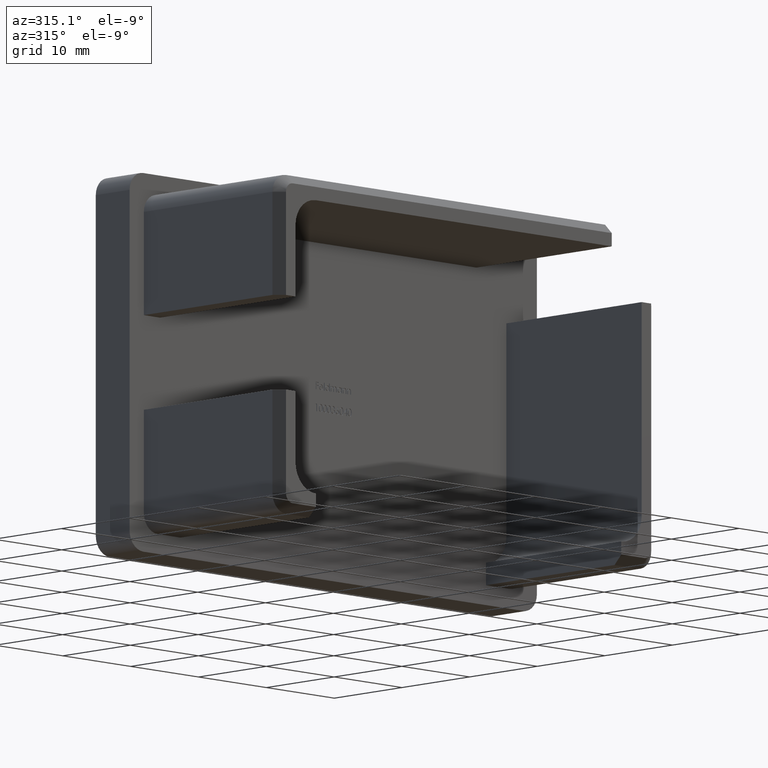
[diagram: clean part render]
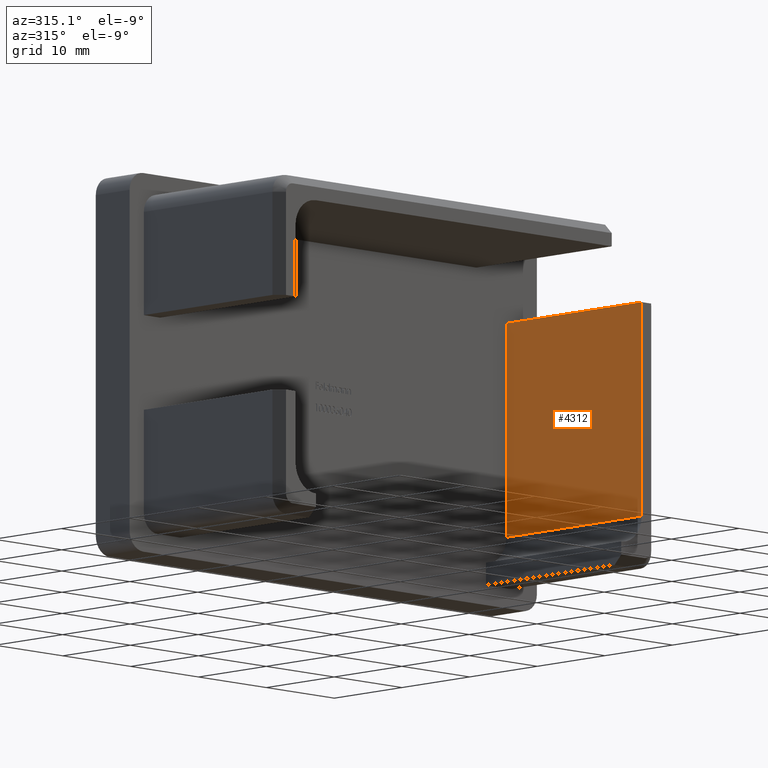
[diagram: same view with one face highlighted and labeled with its STEP entity id]
A machine part, auxiliary view. The second image highlights one B-rep face of the part: STEP entity #4312.
In plain terms, the highlighted planar face has unit normal (1, 0, 0).
Its self-contained STEP definition (entity closure, byte-faithful):
#779 = VERTEX_POINT ( 'NONE', #5652 ) ;
#1231 = CARTESIAN_POINT ( 'NONE',  ( 25.50000000000000400, -20.00000000000000000, 10.09999999999999400 ) ) ;
#1708 = DIRECTION ( 'NONE',  ( 0.0000000000000000000, 0.0000000000000000000, -1.000000000000000000 ) ) ;
#1752 = FACE_OUTER_BOUND ( 'NONE', #2384, .T. ) ;
#1792 = ORIENTED_EDGE ( 'NONE', *, *, #8230, .T. ) ;
#2174 = ORIENTED_EDGE ( 'NONE', *, *, #11158, .T. ) ;
#2300 = VECTOR ( 'NONE', #7105, 1000.000000000000000 ) ;
#2384 = EDGE_LOOP ( 'NONE', ( #1792, #6805, #4353, #2174 ) ) ;
#2405 = DIRECTION ( 'NONE',  ( -0.0000000000000000000, 1.000000000000000000, -0.0000000000000000000 ) ) ;
#2598 = VERTEX_POINT ( 'NONE', #11133 ) ;
#2981 = CARTESIAN_POINT ( 'NONE',  ( 25.50000000000000400, 0.0000000000000000000, -12.50000000000000000 ) ) ;
#3093 = VERTEX_POINT ( 'NONE', #2981 ) ;
#3179 = PLANE ( 'NONE',  #13291 ) ;
#3269 = DIRECTION ( 'NONE',  ( 1.000000000000000000, 0.0000000000000000000, 0.0000000000000000000 ) ) ;
#3879 = VECTOR ( 'NONE', #1708, 1000.000000000000000 ) ;
#4100 = EDGE_CURVE ( 'NONE', #3093, #2598, #12897, .T. ) ;
#4312 = ADVANCED_FACE ( 'NONE', ( #1752 ), #3179, .F. ) ;
#4353 = ORIENTED_EDGE ( 'NONE', *, *, #13535, .F. ) ;
#4755 = CARTESIAN_POINT ( 'NONE',  ( 25.50000000000000400, 0.0000000000000000000, 10.09999999999999400 ) ) ;
#5340 = CARTESIAN_POINT ( 'NONE',  ( 25.50000000000000400, 0.0000000000000000000, 10.09999999999999400 ) ) ;
#5652 = CARTESIAN_POINT ( 'NONE',  ( 25.50000000000000400, -20.00000000000000000, 10.09999999999999400 ) ) ;
#5683 = VERTEX_POINT ( 'NONE', #5340 ) ;
#5803 = LINE ( 'NONE', #1231, #11507 ) ;
#6661 = CARTESIAN_POINT ( 'NONE',  ( 25.50000000000000400, -20.00000000000000000, -12.50000000000000000 ) ) ;
#6805 = ORIENTED_EDGE ( 'NONE', *, *, #4100, .T. ) ;
#7105 = DIRECTION ( 'NONE',  ( 0.0000000000000000000, 0.0000000000000000000, -1.000000000000000000 ) ) ;
#8230 = EDGE_CURVE ( 'NONE', #5683, #3093, #13517, .T. ) ;
#9166 = DIRECTION ( 'NONE',  ( 0.0000000000000000000, 0.0000000000000000000, -1.000000000000000000 ) ) ;
#10299 = CARTESIAN_POINT ( 'NONE',  ( 25.50000000000000400, -20.00000000000000000, 10.09999999999999400 ) ) ;
#10303 = DIRECTION ( 'NONE',  ( -0.0000000000000000000, -1.000000000000000000, 0.0000000000000000000 ) ) ;
#11133 = CARTESIAN_POINT ( 'NONE',  ( 25.50000000000000400, -20.00000000000000000, -12.50000000000000000 ) ) ;
#11158 = EDGE_CURVE ( 'NONE', #779, #5683, #5803, .T. ) ;
#11507 = VECTOR ( 'NONE', #2405, 1000.000000000000000 ) ;
#11983 = VECTOR ( 'NONE', #10303, 1000.000000000000000 ) ;
#12897 = LINE ( 'NONE', #6661, #11983 ) ;
#13252 = LINE ( 'NONE', #14451, #3879 ) ;
#13291 = AXIS2_PLACEMENT_3D ( 'NONE', #10299, #3269, #9166 ) ;
#13517 = LINE ( 'NONE', #4755, #2300 ) ;
#13535 = EDGE_CURVE ( 'NONE', #779, #2598, #13252, .T. ) ;
#14451 = CARTESIAN_POINT ( 'NONE',  ( 25.50000000000000400, -20.00000000000000000, 10.09999999999999400 ) ) ;